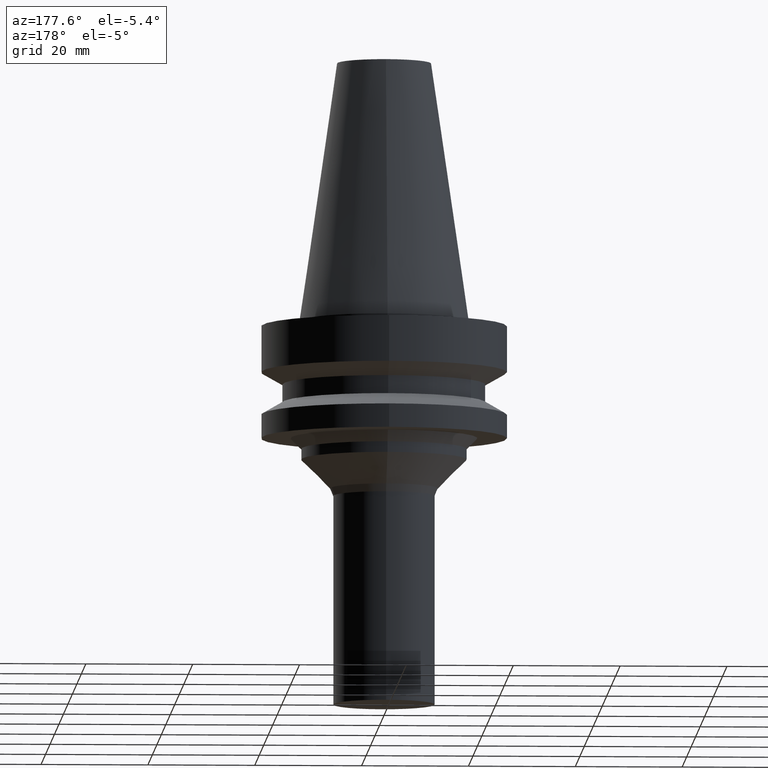
[diagram: clean part render]
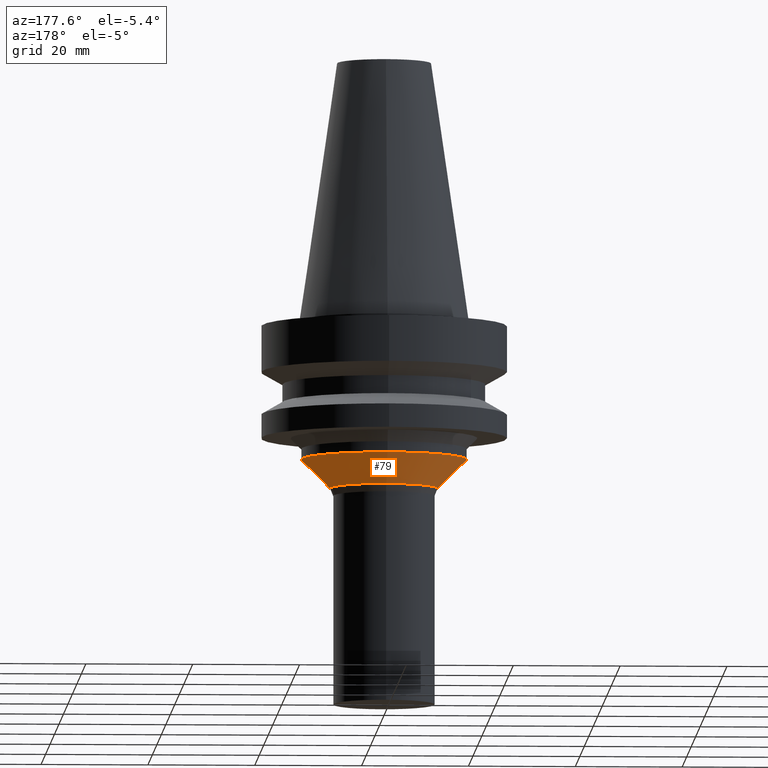
[diagram: same view with one face highlighted and labeled with its STEP entity id]
A machine part, auxiliary view. The second image highlights one B-rep face of the part: STEP entity #79.
In plain terms, the highlighted conical surface has half-angle 45 deg.
Its self-contained STEP definition (entity closure, byte-faithful):
#79=ADVANCED_FACE('',(#102,#103),#104,.T.);
#102=FACE_BOUND('',#148,.T.);
#103=FACE_BOUND('',#149,.T.);
#104=CONICAL_SURFACE('',#150,12.7926832394658,0.785398163397447);
#148=EDGE_LOOP('',(#202));
#149=EDGE_LOOP('',(#203));
#150=AXIS2_PLACEMENT_3D('',#204,#205,#206);
#202=ORIENTED_EDGE('',*,*,#266,.F.);
#203=ORIENTED_EDGE('',*,*,#265,.T.);
#204=CARTESIAN_POINT('',(1.75781617914487E-015,3.51563235828973E-015,-28.7073167605341));
#205=DIRECTION('',(-6.12323399573677E-017,-1.22464679914735E-016,1.0));
#206=DIRECTION('',(-1.23259516440783E-032,1.0,1.22464679914735E-016));
#265=EDGE_CURVE('',#283,#283,#284,.T.);
#266=EDGE_CURVE('',#285,#285,#286,.T.);
#283=VERTEX_POINT('',#313);
#284=CIRCLE('',#314,10.0853664789316);
#285=VERTEX_POINT('',#315);
#286=CIRCLE('',#316,15.5);
#313=CARTESIAN_POINT('',(1.92359151939818E-015,10.0853664789316,-31.4146335210684));
#314=AXIS2_PLACEMENT_3D('',#346,#347,#348);
#315=CARTESIAN_POINT('',(1.59204083889156E-015,15.5,-25.9999999999999));
#316=AXIS2_PLACEMENT_3D('',#349,#350,#351);
#346=CARTESIAN_POINT('',(1.92359151939818E-015,3.84718303879635E-015,-31.4146335210684));
#347=DIRECTION('',(-6.12323399573677E-017,-1.22464679914735E-016,1.0));
#348=DIRECTION('',(-1.23259516440783E-032,1.0,1.22464679914735E-016));
#349=CARTESIAN_POINT('',(1.59204083889156E-015,3.18408167778311E-015,-25.9999999999999));
#350=DIRECTION('',(-6.12323399573677E-017,-1.22464679914735E-016,1.0));
#351=DIRECTION('',(-1.23259516440783E-032,1.0,1.22464679914735E-016));